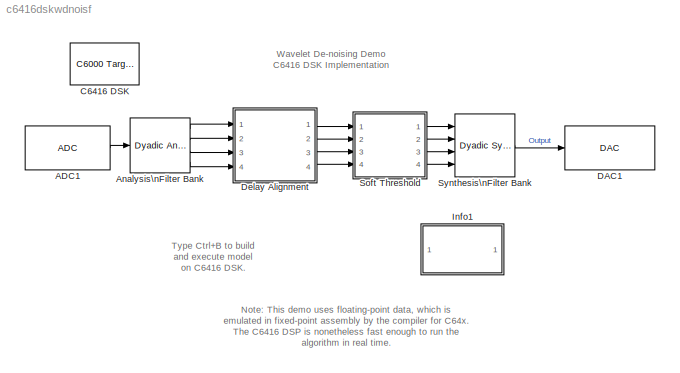
MODEL c6416dskwdnoisf
KIND model
CONFIG PreLoadFcn = load dspwlets;
BLOCK [Reference] ADC1  REF=c6416dsklib/ADC
  ADCsource = Mic In
  CodecDataFormat = 16-bit
  FrameSize = 64
  MicGain = off
  OutputDataType = Double
  Ports = [0, 1]
  SampleRate = 8 kHz
  Scaling = Normalize
  SourceBlock = c6416dsklib/ADC
  SourceGain = 0.0
  SourceType = C6416DSK ADC
  Stereo = off
BLOCK [Reference] Analysis\nFilter Bank  REF=dspmlti3/Dyadic Analysis\nFilter Bank
  Ports = [1, 4]
  SourceBlock = dspmlti3/Dyadic Analysis\nFilter Bank
  SourceType = Dyadic Analysis Filter Bank
  hh = hid
  hl = lod
  numLevels = 3
  tree = Asymmetric
BLOCK [Reference] C6416 DSK  REF=c6000tgtpreflib/C6000 Target\nPreferences
  Ports = []
  ShowPortLabels = on
  SourceBlock = c6000tgtpreflib/C6000 Target\nPreferences
  SourceType = C6000 Target Preferences
  UserData = DataTag0
  UserDataPersistent = on
BLOCK [Reference] DAC1  REF=c6416dsklib/DAC
  CodecDataFormat = 16-bit
  DacAtten = 0.0
  OverflowMode = Wrap
  Ports = [1]
  Scaling = Normalize
  SourceBlock = c6416dsklib/DAC
  SourceType = C6416DSK DAC
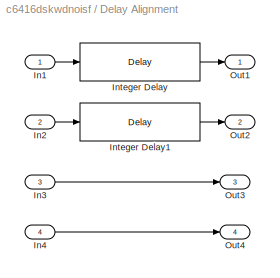
BLOCK [SubSystem] Delay Alignment
  MinAlgLoopOccurrences = off
  Ports = [4, 4]
  TreatAsAtomicUnit = off
BLOCK [Inport] Delay Alignment/In1
  IconDisplay = Port number
BLOCK [Inport] Delay Alignment/In2
  IconDisplay = Port number
  Port = 2
BLOCK [Inport] Delay Alignment/In3
  IconDisplay = Port number
  Port = 3
BLOCK [Inport] Delay Alignment/In4
  IconDisplay = Port number
  Port = 4
BLOCK [Reference] Delay Alignment/Integer Delay  REF=dspsigops/Delay
  Ports = [1, 1]
  SourceBlock = dspsigops/Delay
  SourceType = Delay
  delay = 3*(length(lod)-1)
  dif_ic_for_ch = off
  dif_ic_for_dly = off
  dly_unit = Samples
  ic = 0
  ic_detail = off
  reset_popup = None
BLOCK [Reference] Delay Alignment/Integer Delay1  REF=dspsigops/Delay
  Ports = [1, 1]
  SourceBlock = dspsigops/Delay
  SourceType = Delay
  delay = length(lod) - 1
  dif_ic_for_ch = off
  dif_ic_for_dly = off
  dly_unit = Samples
  ic = 0
  ic_detail = off
  reset_popup = None
BLOCK [Outport] Delay Alignment/Out1
  BusOutputAsStruct = off
  IconDisplay = Port number
BLOCK [Outport] Delay Alignment/Out2
  BusOutputAsStruct = off
  IconDisplay = Port number
  Port = 2
BLOCK [Outport] Delay Alignment/Out3
  BusOutputAsStruct = off
  IconDisplay = Port number
  Port = 3
BLOCK [Outport] Delay Alignment/Out4
  BusOutputAsStruct = off
  IconDisplay = Port number
  Port = 4
BLOCK [SubSystem] Info1
  MaskDisplay = disp('Info')
  MaskIconFrame = off
  MaskIconOpaque = on
  MaskIconRotate = none
  MaskIconUnits = autoscale
  MaskType = Frame-Based Simulation Info
  MinAlgLoopOccurrences = off
  Ports = []
  TreatAsAtomicUnit = off
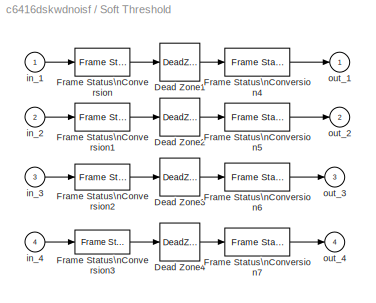
BLOCK [SubSystem] Soft Threshold
  MaskDescription = Apply a soft threshold (deadzone transfer function) to each signal in the decomposition.  First threshold applies to top-most filter bank output.
  MaskDisplay = text(.1,.9,'Dead Zone')\nplot(x,y)
  MaskEnableString = on
  MaskHelp = Vector of thresholds for each decomposition level.\n
  MaskIconFrame = on
  MaskIconOpaque = on
  MaskIconRotate = none
  MaskIconUnits = normalized
  MaskInitialization = x=([-1 1 NaN 0 0 NaN -1 -.5 .5 1]+1)/2*.7+.15;\ny=([0 0 NaN -1 1 NaN -1 0 0 1]+1)/2*.7+.05;
  MaskPromptString = Vector of thresholds for each level:
  MaskStyleString = edit
  MaskToolTipString = on
  MaskTunableValueString = on
  MaskType = Soft Threshold
  MaskValueString = [3 2 1 0]
  MaskVariables = st=@1;
  MaskVisibilityString = on
  MinAlgLoopOccurrences = off
  Ports = [4, 4]
  ShowPortLabels = off
  TreatAsAtomicUnit = off
BLOCK [DeadZone] Soft Threshold/Dead Zone1
  LowerValue = -st(1)
  UpperValue = st(1)
  ZeroCross = off
BLOCK [DeadZone] Soft Threshold/Dead Zone2
  LowerValue = -st(2)
  UpperValue = st(2)
  ZeroCross = off
BLOCK [DeadZone] Soft Threshold/Dead Zone3
  LowerValue = -st(3)
  UpperValue = st(3)
  ZeroCross = off
BLOCK [DeadZone] Soft Threshold/Dead Zone4
  LowerValue = -st(4)
  UpperValue = st(4)
  ZeroCross = off
BLOCK [Reference] Soft Threshold/Frame Status\nConversion  REF=dspsigattribs/Frame Status\nConversion
  Ports = [1, 1]
  ShowPortLabels = off
  SourceBlock = dspsigattribs/Frame Status\nConversion
  SourceType = Frame Status Conversion
  growRefPort = off
  outframe = Sample-based
BLOCK [Reference] Soft Threshold/Frame Status\nConversion1  REF=dspsigattribs/Frame Status\nConversion
  Ports = [1, 1]
  ShowPortLabels = off
  SourceBlock = dspsigattribs/Frame Status\nConversion
  SourceType = Frame Status Conversion
  growRefPort = off
  outframe = Sample-based
BLOCK [Reference] Soft Threshold/Frame Status\nConversion2  REF=dspsigattribs/Frame Status\nConversion
  Ports = [1, 1]
  ShowPortLabels = off
  SourceBlock = dspsigattribs/Frame Status\nConversion
  SourceType = Frame Status Conversion
  growRefPort = off
  outframe = Sample-based
BLOCK [Reference] Soft Threshold/Frame Status\nConversion3  REF=dspsigattribs/Frame Status\nConversion
  Ports = [1, 1]
  ShowPortLabels = off
  SourceBlock = dspsigattribs/Frame Status\nConversion
  SourceType = Frame Status Conversion
  growRefPort = off
  outframe = Sample-based
BLOCK [Reference] Soft Threshold/Frame Status\nConversion4  REF=dspsigattribs/Frame Status\nConversion
  Ports = [1, 1]
  ShowPortLabels = off
  SourceBlock = dspsigattribs/Frame Status\nConversion
  SourceType = Frame Status Conversion
  growRefPort = off
  outframe = Frame-based
BLOCK [Reference] Soft Threshold/Frame Status\nConversion5  REF=dspsigattribs/Frame Status\nConversion
  Ports = [1, 1]
  ShowPortLabels = off
  SourceBlock = dspsigattribs/Frame Status\nConversion
  SourceType = Frame Status Conversion
  growRefPort = off
  outframe = Frame-based
BLOCK [Reference] Soft Threshold/Frame Status\nConversion6  REF=dspsigattribs/Frame Status\nConversion
  Ports = [1, 1]
  ShowPortLabels = off
  SourceBlock = dspsigattribs/Frame Status\nConversion
  SourceType = Frame Status Conversion
  growRefPort = off
  outframe = Frame-based
BLOCK [Reference] Soft Threshold/Frame Status\nConversion7  REF=dspsigattribs/Frame Status\nConversion
  Ports = [1, 1]
  ShowPortLabels = off
  SourceBlock = dspsigattribs/Frame Status\nConversion
  SourceType = Frame Status Conversion
  growRefPort = off
  outframe = Frame-based
BLOCK [Inport] Soft Threshold/in_1
  IconDisplay = Port number
BLOCK [Inport] Soft Threshold/in_2
  IconDisplay = Port number
  Port = 2
BLOCK [Inport] Soft Threshold/in_3
  IconDisplay = Port number
  Port = 3
BLOCK [Inport] Soft Threshold/in_4
  IconDisplay = Port number
  Port = 4
BLOCK [Outport] Soft Threshold/out_1
  BusOutputAsStruct = off
  IconDisplay = Port number
  InitialOutput = 0
BLOCK [Outport] Soft Threshold/out_2
  BusOutputAsStruct = off
  IconDisplay = Port number
  InitialOutput = 0
  Port = 2
BLOCK [Outport] Soft Threshold/out_3
  BusOutputAsStruct = off
  IconDisplay = Port number
  InitialOutput = 0
  Port = 3
BLOCK [Outport] Soft Threshold/out_4
  BusOutputAsStruct = off
  IconDisplay = Port number
  InitialOutput = 0
  Port = 4
BLOCK [Reference] Synthesis\nFilter Bank  REF=dspmlti3/Dyadic Synthesis\nFilter Bank
  Ports = [4, 1]
  SourceBlock = dspmlti3/Dyadic Synthesis\nFilter Bank
  SourceType = Dyadic Synthesis Filter Bank
  hh = hir
  hl = lor
  numLevels = 3
  tree = Asymmetric
ANNOTATION (root): Note: This demo uses floating-point data, which is \nemulated in fixed-point assembly by the compiler for C64x. \nThe C6416 DSP is nonetheless fast enough to run the \nalgorithm in real time.
ANNOTATION (root): Type Ctrl+B to build\nand execute model\non C6416 DSK.
ANNOTATION (root): Wavelet De-noising Demo\nC6416 DSK Implementation
ANNOTATION Info1: Demonstration of wavelet de-noising\n\nSet the threshold levels in the \"Soft Threshold\" block\nto alter the de-noising characteristics of the system:\n\nThreshold=[0 0 0 0] -> No de-noising\n(perfect reconstruction)\n\nThreshold=[3 2 1 0] -> Moderate de-noising\n(removes small-scale content from signal)
LINE ADC1:1 -> Analysis\nFilter Bank:1
LINE Analysis\nFilter Bank:1 -> Delay Alignment:1
LINE Analysis\nFilter Bank:2 -> Delay Alignment:2
LINE Analysis\nFilter Bank:3 -> Delay Alignment:3
LINE Analysis\nFilter Bank:4 -> Delay Alignment:4
LINE Delay Alignment/In1:1 -> Delay Alignment/Integer Delay:1
LINE Delay Alignment/In2:1 -> Delay Alignment/Integer Delay1:1
LINE Delay Alignment/In3:1 -> Delay Alignment/Out3:1
LINE Delay Alignment/In4:1 -> Delay Alignment/Out4:1
LINE Delay Alignment/Integer Delay1:1 -> Delay Alignment/Out2:1
LINE Delay Alignment/Integer Delay:1 -> Delay Alignment/Out1:1
LINE Delay Alignment:1 -> Soft Threshold:1
LINE Delay Alignment:2 -> Soft Threshold:2
LINE Delay Alignment:3 -> Soft Threshold:3
LINE Delay Alignment:4 -> Soft Threshold:4
LINE Soft Threshold/Dead Zone1:1 -> Soft Threshold/Frame Status\nConversion4:1
LINE Soft Threshold/Dead Zone2:1 -> Soft Threshold/Frame Status\nConversion5:1
LINE Soft Threshold/Dead Zone3:1 -> Soft Threshold/Frame Status\nConversion6:1
LINE Soft Threshold/Dead Zone4:1 -> Soft Threshold/Frame Status\nConversion7:1
LINE Soft Threshold/Frame Status\nConversion1:1 -> Soft Threshold/Dead Zone2:1
LINE Soft Threshold/Frame Status\nConversion2:1 -> Soft Threshold/Dead Zone3:1
LINE Soft Threshold/Frame Status\nConversion3:1 -> Soft Threshold/Dead Zone4:1
LINE Soft Threshold/Frame Status\nConversion4:1 -> Soft Threshold/out_1:1
LINE Soft Threshold/Frame Status\nConversion5:1 -> Soft Threshold/out_2:1
LINE Soft Threshold/Frame Status\nConversion6:1 -> Soft Threshold/out_3:1
LINE Soft Threshold/Frame Status\nConversion7:1 -> Soft Threshold/out_4:1
LINE Soft Threshold/Frame Status\nConversion:1 -> Soft Threshold/Dead Zone1:1
LINE Soft Threshold/in_1:1 -> Soft Threshold/Frame Status\nConversion:1
LINE Soft Threshold/in_2:1 -> Soft Threshold/Frame Status\nConversion1:1
LINE Soft Threshold/in_3:1 -> Soft Threshold/Frame Status\nConversion2:1
LINE Soft Threshold/in_4:1 -> Soft Threshold/Frame Status\nConversion3:1
LINE Soft Threshold:1 -> Synthesis\nFilter Bank:1
LINE Soft Threshold:2 -> Synthesis\nFilter Bank:2
LINE Soft Threshold:3 -> Synthesis\nFilter Bank:3
LINE Soft Threshold:4 -> Synthesis\nFilter Bank:4
LINE Synthesis\nFilter Bank:1 -> DAC1:1
